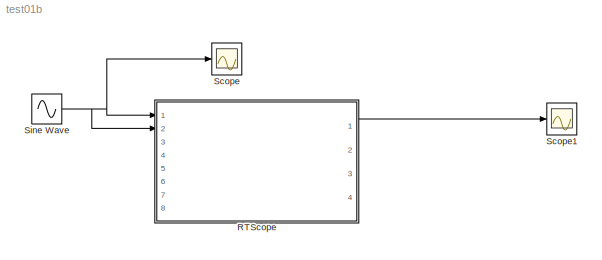
MODEL test01b
KIND model
CONFIG AbsTol = auto
CONFIG FixedStep = 1/4000
CONFIG MaxStep = auto
CONFIG MinStep = auto
CONFIG RelTol = 1e-3
CONFIG Solver = FixedStepDiscrete
CONFIG SolverMode = Auto
CONFIG StartTime = 0.0
CONFIG StopTime = 120
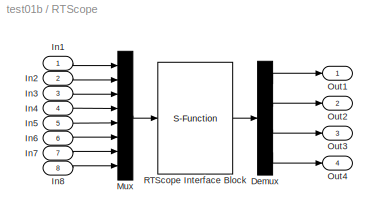
BLOCK [SubSystem] RTScope
  MaskDisplay = image(imread('rtscope2.jpg'))
  MaskIconFrame = on
  MaskIconOpaque = on
  MaskIconRotate = none
  MaskIconUnits = autoscale
  MaskType = RTScope
  OpenFcn = rtscope
  Ports = [8, 4]
  RTWFcnNameOpts = Auto
  RTWFileNameOpts = Auto
  RTWSystemCode = Auto
  ShowPortLabels = on
  TreatAsAtomicUnit = off
BLOCK [Demux] RTScope/Demux
  BusSelectionMode = off
  Outputs = 4
  Ports = [1, 4]
BLOCK [Inport] RTScope/In1
  Interpolate = on
  LatchInput = off
  Port = 1
BLOCK [Inport] RTScope/In2
  Interpolate = on
  LatchInput = off
  Port = 2
BLOCK [Inport] RTScope/In3
  Interpolate = on
  LatchInput = off
  Port = 3
BLOCK [Inport] RTScope/In4
  Interpolate = on
  LatchInput = off
  Port = 4
BLOCK [Inport] RTScope/In5
  Interpolate = on
  LatchInput = off
  Port = 5
BLOCK [Inport] RTScope/In6
  Interpolate = on
  LatchInput = off
  Port = 6
BLOCK [Inport] RTScope/In7
  Interpolate = on
  LatchInput = off
  Port = 7
BLOCK [Inport] RTScope/In8
  Interpolate = on
  LatchInput = off
  Port = 8
BLOCK [Mux] RTScope/Mux
  DisplayOption = bar
  Inputs = 8
  Ports = [8, 1]
BLOCK [Outport] RTScope/Out1
  InitialOutput = []
  OutputWhenDisabled = held
  Port = 1
BLOCK [Outport] RTScope/Out2
  InitialOutput = []
  OutputWhenDisabled = held
  Port = 2
BLOCK [Outport] RTScope/Out3
  InitialOutput = []
  OutputWhenDisabled = held
  Port = 3
BLOCK [Outport] RTScope/Out4
  InitialOutput = []
  OutputWhenDisabled = held
  Port = 4
BLOCK [S-Function] RTScope/RTScope Interface Block
  FunctionName = sf_qadscope
  OpenFcn = rtscope
  Parameters = 4000
  PortCounts = []
  Ports = [1, 1]
  SFunctionModules = ''
BLOCK [Scope] Scope
  DataFormat = StructureWithTime
  Decimation = 1
  Floating = off
  Grid = on
  LimitDataPoints = on
  MaxDataPoints = 5000
  NumInputPorts = 1
  Ports = [1]
  SampleInput = off
  SampleTime = 0
  SaveName = ScopeData
  SaveToWorkspace = off
  TickLabels = OneTimeTick
  TimeRange = 1
  YMax = 5
  YMin = -5
  ZoomMode = on
BLOCK [Scope] Scope1
  DataFormat = StructureWithTime
  Decimation = 1
  Floating = off
  Grid = on
  LimitDataPoints = on
  MaxDataPoints = 5000
  NumInputPorts = 1
  Ports = [1]
  SampleInput = off
  SampleTime = 0
  SaveName = ScopeData1
  SaveToWorkspace = off
  TickLabels = OneTimeTick
  TimeRange = 1
  YMax = 1
  YMin = -1
  ZoomMode = on
BLOCK [Sin] Sine Wave
  Amplitude = 3
  Bias = 0
  Frequency = 2*pi*10
  Offset = 0
  Phase = 0
  SampleTime = 0
  Samples = 10
  SineType = Time-based
  VectorParams1D = on
LINE RTScope/Demux:1 -> RTScope/Out1:1
LINE RTScope/Demux:2 -> RTScope/Out2:1
LINE RTScope/Demux:3 -> RTScope/Out3:1
LINE RTScope/Demux:4 -> RTScope/Out4:1
LINE RTScope/In1:1 -> RTScope/Mux:1
LINE RTScope/In2:1 -> RTScope/Mux:2
LINE RTScope/In3:1 -> RTScope/Mux:3
LINE RTScope/In4:1 -> RTScope/Mux:4
LINE RTScope/In5:1 -> RTScope/Mux:5
LINE RTScope/In6:1 -> RTScope/Mux:6
LINE RTScope/In7:1 -> RTScope/Mux:7
LINE RTScope/In8:1 -> RTScope/Mux:8
LINE RTScope/Mux:1 -> RTScope/RTScope Interface Block:1
LINE RTScope/RTScope Interface Block:1 -> RTScope/Demux:1
LINE RTScope:1 -> Scope1:1
NET Sine Wave:1 -> RTScope:1, RTScope:2, Scope:1
note: NET lines group one-source signal fan-out (src -> all destinations, sorted); 1:1 wires keep LINE
